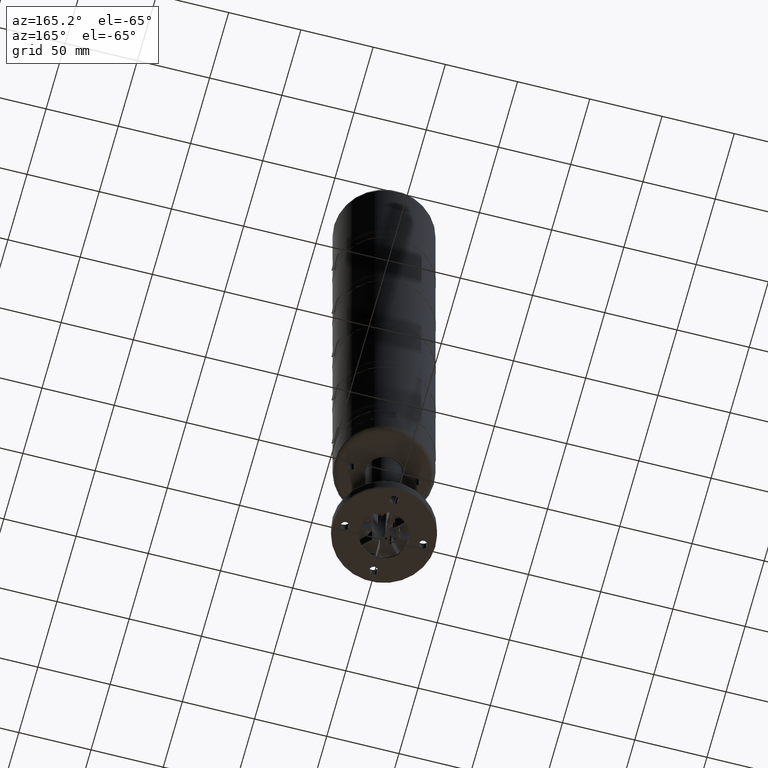
[diagram: clean part render]
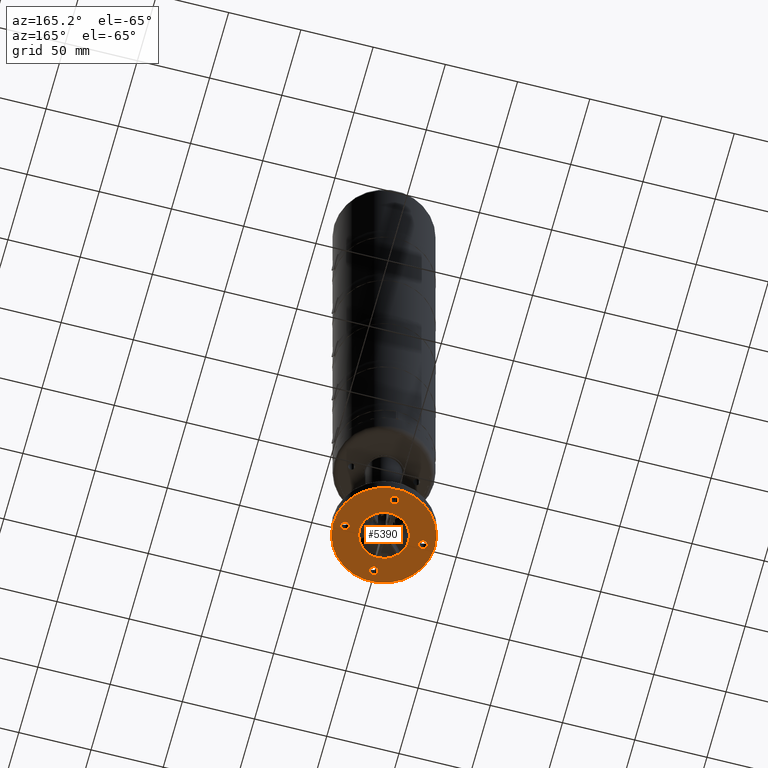
[diagram: same view with one face highlighted and labeled with its STEP entity id]
A machine part, auxiliary view. The second image highlights one B-rep face of the part: STEP entity #5390.
In plain terms, the highlighted planar face has unit normal (0, 0, 1).
Its self-contained STEP definition (entity closure, byte-faithful):
#4290=FACE_BOUND('',#8384,.T.);
#4291=FACE_BOUND('',#8385,.T.);
#4292=FACE_BOUND('',#8386,.T.);
#4293=FACE_BOUND('',#8387,.T.);
#4294=FACE_BOUND('',#8388,.T.);
#4295=FACE_BOUND('',#8389,.T.);
#5390=ADVANCED_FACE('',(#4290,#4291,#4292,#4293,#4294,#4295),#6089,.F.);
#6089=PLANE('',#22029);
#8384=EDGE_LOOP('',(#13233));
#8385=EDGE_LOOP('',(#13234));
#8386=EDGE_LOOP('',(#13235));
#8387=EDGE_LOOP('',(#13236));
#8388=EDGE_LOOP('',(#13237));
#8389=EDGE_LOOP('',(#13238));
#13233=ORIENTED_EDGE('',*,*,#18392,.F.);
#13234=ORIENTED_EDGE('',*,*,#18393,.F.);
#13235=ORIENTED_EDGE('',*,*,#18394,.F.);
#13236=ORIENTED_EDGE('',*,*,#18395,.F.);
#13237=ORIENTED_EDGE('',*,*,#18387,.T.);
#13238=ORIENTED_EDGE('',*,*,#18396,.F.);
#15760=VERTEX_POINT('',#34812);
#15765=VERTEX_POINT('',#34824);
#15766=VERTEX_POINT('',#34826);
#15767=VERTEX_POINT('',#34828);
#15768=VERTEX_POINT('',#34830);
#15769=VERTEX_POINT('',#34832);
#18387=EDGE_CURVE('',#15760,#15760,#19802,.T.);
#18392=EDGE_CURVE('',#15765,#15765,#19807,.T.);
#18393=EDGE_CURVE('',#15766,#15766,#19808,.T.);
#18394=EDGE_CURVE('',#15767,#15767,#19809,.T.);
#18395=EDGE_CURVE('',#15768,#15768,#19810,.T.);
#18396=EDGE_CURVE('',#15769,#15769,#19811,.T.);
#19802=CIRCLE('',#22017,17.);
#19807=CIRCLE('',#22024,2.9);
#19808=CIRCLE('',#22025,2.9);
#19809=CIRCLE('',#22026,2.9);
#19810=CIRCLE('',#22027,2.9);
#19811=CIRCLE('',#22028,35.2);
#22017=AXIS2_PLACEMENT_3D('',#34811,#27594,#27595);
#22024=AXIS2_PLACEMENT_3D('',#34823,#27608,#27609);
#22025=AXIS2_PLACEMENT_3D('',#34825,#27610,#27611);
#22026=AXIS2_PLACEMENT_3D('',#34827,#27612,#27613);
#22027=AXIS2_PLACEMENT_3D('',#34829,#27614,#27615);
#22028=AXIS2_PLACEMENT_3D('',#34831,#27616,#27617);
#22029=AXIS2_PLACEMENT_3D('',#34833,#27618,#27619);
#27594=DIRECTION('',(0.,0.,1.));
#27595=DIRECTION('',(1.,0.,0.));
#27608=DIRECTION('',(0.,0.,-1.));
#27609=DIRECTION('',(-6.12262731586212E-017,-1.,0.));
#27610=DIRECTION('',(0.,0.,-1.));
#27611=DIRECTION('',(-1.,-4.04453249757088E-021,0.));
#27612=DIRECTION('',(0.,0.,-1.));
#27613=DIRECTION('',(-6.12343622236165E-017,1.,0.));
#27614=DIRECTION('',(0.,0.,-1.));
#27615=DIRECTION('',(1.,1.22464679914735E-016,0.));
#27616=DIRECTION('',(0.,0.,1.));
#27617=DIRECTION('',(1.,0.,0.));
#27618=DIRECTION('',(0.,0.,1.));
#27619=DIRECTION('',(1.,0.,0.));
#34811=CARTESIAN_POINT('',(3.30643715532042E-015,0.,-57.25));
#34812=CARTESIAN_POINT('',(17.,0.,-57.25));
#34823=CARTESIAN_POINT('',(-1.65321857766021E-015,-27.,-57.25));
#34824=CARTESIAN_POINT('',(-1.83077476982021E-015,-29.9,-57.25));
#34825=CARTESIAN_POINT('',(-27.,3.30643715532042E-015,-57.25));
#34826=CARTESIAN_POINT('',(-29.9,3.30642542617618E-015,-57.25));
#34827=CARTESIAN_POINT('',(4.95965573298063E-015,27.,-57.25));
#34828=CARTESIAN_POINT('',(4.78207608253214E-015,29.9,-57.25));
#34829=CARTESIAN_POINT('',(27.,0.,-57.25));
#34830=CARTESIAN_POINT('',(29.9,3.55147571752732E-016,-57.25));
#34831=CARTESIAN_POINT('',(3.30643715532042E-015,0.,-57.25));
#34832=CARTESIAN_POINT('',(35.2,0.,-57.25));
#34833=CARTESIAN_POINT('',(3.30643715532042E-015,0.,-57.25));